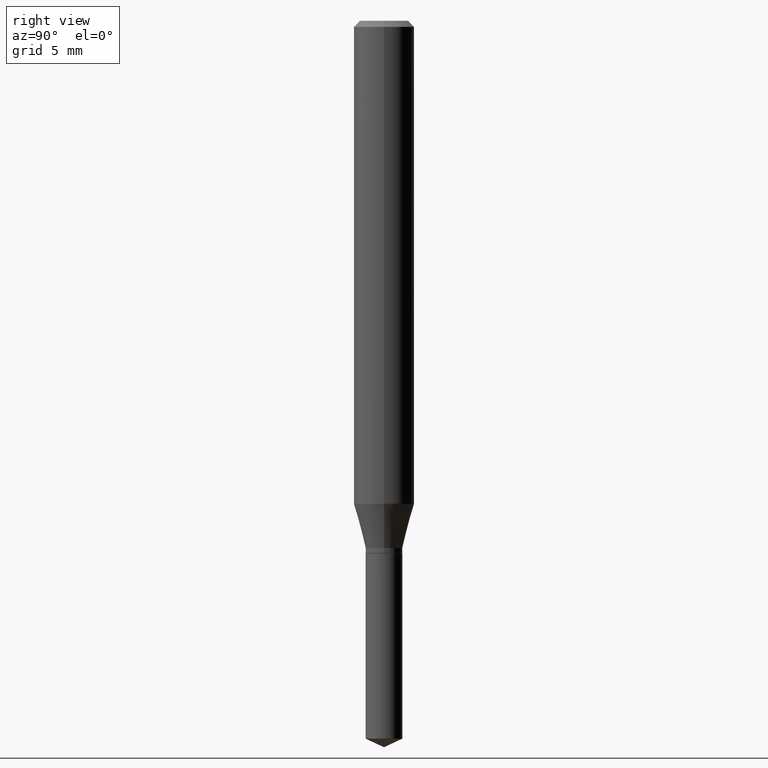
[diagram: clean part render]
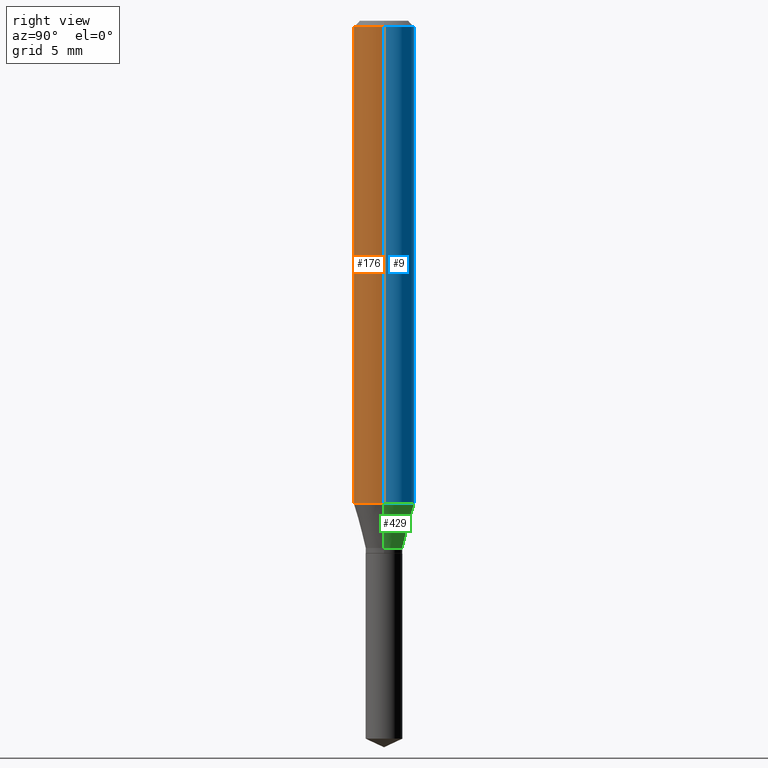
[diagram: same view with three faces highlighted in distinct colors, each labeled with its STEP entity id]
A machine part, right view with three faces highlighted in distinct colors.
Their STEP definitions:

[orange] entity #176 — the highlighted cylindrical surface (edge-blend (fillet) strip) has radius 1.5875 mm, axis along (-0, 0, 1).
#21 = LINE ( 'NONE', #331, #336 ) ;
#34 = CARTESIAN_POINT ( 'NONE',  ( -0.06250000000000012490, -3.037492924733674885E-15, -0.9971647552145623816 ) ) ;
#57 = DIRECTION ( 'NONE',  ( -2.445468806185136877E-29, 3.491481338843145188E-15, 1.000000000000000000 ) ) ;
#75 = CARTESIAN_POINT ( 'NONE',  ( 2.438535303504449813E-29, -3.481582134583737895E-15, -0.9971647552145623816 ) ) ;
#81 = DIRECTION ( 'NONE',  ( -2.445468806185136877E-29, 3.491481338843145188E-15, 1.000000000000000000 ) ) ;
#93 = CARTESIAN_POINT ( 'NONE',  ( 0.000000000000000000, 0.000000000000000000, 0.000000000000000000 ) ) ;
#105 = CIRCLE ( 'NONE', #446, 0.06250000000000012490 ) ;
#111 = VERTEX_POINT ( 'NONE', #34 ) ;
#119 = DIRECTION ( 'NONE',  ( 1.000000000000000000, -6.982962677686266711E-15, 0.000000000000000000 ) ) ;
#130 = FACE_OUTER_BOUND ( 'NONE', #318, .T. ) ;
#142 = CARTESIAN_POINT ( 'NONE',  ( 0.06250000000000012490, -3.918017301939130748E-15, -0.9971647552145623816 ) ) ;
#167 = ORIENTED_EDGE ( 'NONE', *, *, #355, .F. ) ;
#176 = ADVANCED_FACE ( 'NONE', ( #130 ), #287, .T. ) ;
#177 = ORIENTED_EDGE ( 'NONE', *, *, #342, .T. ) ;
#180 = CIRCLE ( 'NONE', #396, 0.06250000000000000000 ) ;
#198 = ORIENTED_EDGE ( 'NONE', *, *, #390, .T. ) ;
#199 = VERTEX_POINT ( 'NONE', #265 ) ;
#238 = CARTESIAN_POINT ( 'NONE',  ( 3.056836007731440539E-31, -4.364351673553960451E-17, -0.01250000000000008049 ) ) ;
#244 = LINE ( 'NONE', #398, #482 ) ;
#245 = DIRECTION ( 'NONE',  ( 1.000000000000000000, -6.982962677686267499E-15, 4.876176775795936353E-29 ) ) ;
#265 = CARTESIAN_POINT ( 'NONE',  ( 0.06250000000000000000, -4.800786840909312308E-16, -0.01250000000000008049 ) ) ;
#282 = ORIENTED_EDGE ( 'NONE', *, *, #327, .F. ) ;
#287 = CYLINDRICAL_SURFACE ( 'NONE', #385, 0.06250000000000005551 ) ;
#291 = CARTESIAN_POINT ( 'NONE',  ( -0.06250000000000000000, -1.318523615809574929E-15, -0.01250000000000008049 ) ) ;
#318 = EDGE_LOOP ( 'NONE', ( #167, #177, #198, #282 ) ) ;
#327 = EDGE_CURVE ( 'NONE', #391, #199, #180, .T. ) ;
#331 = CARTESIAN_POINT ( 'NONE',  ( -0.06250000000000005551, 4.440892098500630106E-16, -3.074334431409318916E-30 ) ) ;
#336 = VECTOR ( 'NONE', #81, 39.37007874015748143 ) ;
#342 = EDGE_CURVE ( 'NONE', #111, #360, #105, .T. ) ;
#346 = DIRECTION ( 'NONE',  ( -2.445468806185136597E-29, 3.491481338843145583E-15, 1.000000000000000000 ) ) ;
#355 = EDGE_CURVE ( 'NONE', #111, #391, #21, .T. ) ;
#360 = VERTEX_POINT ( 'NONE', #142 ) ;
#385 = AXIS2_PLACEMENT_3D ( 'NONE', #93, #468, #245 ) ;
#390 = EDGE_CURVE ( 'NONE', #360, #199, #244, .T. ) ;
#391 = VERTEX_POINT ( 'NONE', #291 ) ;
#396 = AXIS2_PLACEMENT_3D ( 'NONE', #238, #346, #119 ) ;
#398 = CARTESIAN_POINT ( 'NONE',  ( 0.06250000000000005551, -4.364351673553921131E-16, 3.047610484872463023E-30 ) ) ;
#433 = DIRECTION ( 'NONE',  ( -2.445468806185136597E-29, 3.491481338843145583E-15, 1.000000000000000000 ) ) ;
#446 = AXIS2_PLACEMENT_3D ( 'NONE', #75, #433, #460 ) ;
#460 = DIRECTION ( 'NONE',  ( 1.000000000000000000, -6.982962677686264344E-15, 0.000000000000000000 ) ) ;
#468 = DIRECTION ( 'NONE',  ( -2.445468806185136597E-29, 3.491481338843145583E-15, 1.000000000000000000 ) ) ;
#482 = VECTOR ( 'NONE', #57, 39.37007874015748143 ) ;

[blue] entity #9 — the highlighted cylindrical surface (edge-blend (fillet) strip) has radius 1.5875 mm, axis along (-0, 0, 1).
#5 = AXIS2_PLACEMENT_3D ( 'NONE', #296, #102, #24 ) ;
#9 = ADVANCED_FACE ( 'NONE', ( #107 ), #328, .T. ) ;
#21 = LINE ( 'NONE', #331, #336 ) ;
#22 = ORIENTED_EDGE ( 'NONE', *, *, #390, .F. ) ;
#24 = DIRECTION ( 'NONE',  ( 1.000000000000000000, -6.982962677686267499E-15, 4.876176775795936353E-29 ) ) ;
#34 = CARTESIAN_POINT ( 'NONE',  ( -0.06250000000000012490, -3.037492924733674885E-15, -0.9971647552145623816 ) ) ;
#39 = DIRECTION ( 'NONE',  ( 1.000000000000000000, -6.982962677686264344E-15, 0.000000000000000000 ) ) ;
#57 = DIRECTION ( 'NONE',  ( -2.445468806185136877E-29, 3.491481338843145188E-15, 1.000000000000000000 ) ) ;
#61 = EDGE_CURVE ( 'NONE', #199, #391, #415, .T. ) ;
#69 = EDGE_LOOP ( 'NONE', ( #140, #470, #207, #22 ) ) ;
#81 = DIRECTION ( 'NONE',  ( -2.445468806185136877E-29, 3.491481338843145188E-15, 1.000000000000000000 ) ) ;
#102 = DIRECTION ( 'NONE',  ( -2.445468806185136597E-29, 3.491481338843145583E-15, 1.000000000000000000 ) ) ;
#107 = FACE_OUTER_BOUND ( 'NONE', #69, .T. ) ;
#111 = VERTEX_POINT ( 'NONE', #34 ) ;
#127 = CIRCLE ( 'NONE', #206, 0.06250000000000012490 ) ;
#140 = ORIENTED_EDGE ( 'NONE', *, *, #334, .T. ) ;
#142 = CARTESIAN_POINT ( 'NONE',  ( 0.06250000000000012490, -3.918017301939130748E-15, -0.9971647552145623816 ) ) ;
#199 = VERTEX_POINT ( 'NONE', #265 ) ;
#206 = AXIS2_PLACEMENT_3D ( 'NONE', #387, #381, #39 ) ;
#207 = ORIENTED_EDGE ( 'NONE', *, *, #61, .F. ) ;
#244 = LINE ( 'NONE', #398, #482 ) ;
#254 = AXIS2_PLACEMENT_3D ( 'NONE', #340, #305, #270 ) ;
#265 = CARTESIAN_POINT ( 'NONE',  ( 0.06250000000000000000, -4.800786840909312308E-16, -0.01250000000000008049 ) ) ;
#270 = DIRECTION ( 'NONE',  ( 1.000000000000000000, -6.982962677686266711E-15, 0.000000000000000000 ) ) ;
#291 = CARTESIAN_POINT ( 'NONE',  ( -0.06250000000000000000, -1.318523615809574929E-15, -0.01250000000000008049 ) ) ;
#296 = CARTESIAN_POINT ( 'NONE',  ( 0.000000000000000000, 0.000000000000000000, 0.000000000000000000 ) ) ;
#305 = DIRECTION ( 'NONE',  ( -2.445468806185136597E-29, 3.491481338843145583E-15, 1.000000000000000000 ) ) ;
#328 = CYLINDRICAL_SURFACE ( 'NONE', #5, 0.06250000000000005551 ) ;
#331 = CARTESIAN_POINT ( 'NONE',  ( -0.06250000000000005551, 4.440892098500630106E-16, -3.074334431409318916E-30 ) ) ;
#334 = EDGE_CURVE ( 'NONE', #360, #111, #127, .T. ) ;
#336 = VECTOR ( 'NONE', #81, 39.37007874015748143 ) ;
#340 = CARTESIAN_POINT ( 'NONE',  ( 3.056836007731440539E-31, -4.364351673553960451E-17, -0.01250000000000008049 ) ) ;
#355 = EDGE_CURVE ( 'NONE', #111, #391, #21, .T. ) ;
#360 = VERTEX_POINT ( 'NONE', #142 ) ;
#381 = DIRECTION ( 'NONE',  ( -2.445468806185136597E-29, 3.491481338843145583E-15, 1.000000000000000000 ) ) ;
#387 = CARTESIAN_POINT ( 'NONE',  ( 2.438535303504449813E-29, -3.481582134583737895E-15, -0.9971647552145623816 ) ) ;
#390 = EDGE_CURVE ( 'NONE', #360, #199, #244, .T. ) ;
#391 = VERTEX_POINT ( 'NONE', #291 ) ;
#398 = CARTESIAN_POINT ( 'NONE',  ( 0.06250000000000005551, -4.364351673553921131E-16, 3.047610484872463023E-30 ) ) ;
#415 = CIRCLE ( 'NONE', #254, 0.06250000000000000000 ) ;
#470 = ORIENTED_EDGE ( 'NONE', *, *, #355, .T. ) ;
#482 = VECTOR ( 'NONE', #57, 39.37007874015748143 ) ;

[green] entity #429 — the highlighted conical surface has half-angle 15 deg.
#3 = ORIENTED_EDGE ( 'NONE', *, *, #122, .F. ) ;
#4 = LINE ( 'NONE', #395, #373 ) ;
#8 = CONICAL_SURFACE ( 'NONE', #259, 0.03800000000000000600, 0.2617993877991500740 ) ;
#15 = DIRECTION ( 'NONE',  ( 1.000000000000000000, -6.982962677686267499E-15, 0.000000000000000000 ) ) ;
#34 = CARTESIAN_POINT ( 'NONE',  ( -0.06250000000000012490, -3.037492924733674885E-15, -0.9971647552145623816 ) ) ;
#38 = DIRECTION ( 'NONE',  ( 0.2588190451025213501, 1.565188264969621968E-15, 0.9659258262890682012 ) ) ;
#39 = DIRECTION ( 'NONE',  ( 1.000000000000000000, -6.982962677686264344E-15, 0.000000000000000000 ) ) ;
#54 = DIRECTION ( 'NONE',  ( 1.000000000000000000, -6.982962677686267499E-15, 0.000000000000000000 ) ) ;
#56 = EDGE_CURVE ( 'NONE', #463, #352, #462, .T. ) ;
#92 = CARTESIAN_POINT ( 'NONE',  ( 0.03800000000000000600, -4.066179167216727040E-15, -1.088600000000000012 ) ) ;
#111 = VERTEX_POINT ( 'NONE', #34 ) ;
#122 = EDGE_CURVE ( 'NONE', #463, #360, #489, .T. ) ;
#127 = CIRCLE ( 'NONE', #206, 0.06250000000000012490 ) ;
#142 = CARTESIAN_POINT ( 'NONE',  ( 0.06250000000000012490, -3.918017301939130748E-15, -0.9971647552145623816 ) ) ;
#168 = DIRECTION ( 'NONE',  ( -2.445468806185136597E-29, 3.491481338843145583E-15, 1.000000000000000000 ) ) ;
#187 = DIRECTION ( 'NONE',  ( -2.445468806185136597E-29, 3.491481338843145583E-15, 1.000000000000000000 ) ) ;
#206 = AXIS2_PLACEMENT_3D ( 'NONE', #387, #381, #39 ) ;
#210 = CARTESIAN_POINT ( 'NONE',  ( 2.662137342413139764E-29, -3.800826585464649031E-15, -1.088600000000000012 ) ) ;
#259 = AXIS2_PLACEMENT_3D ( 'NONE', #210, #168, #54 ) ;
#264 = ORIENTED_EDGE ( 'NONE', *, *, #422, .T. ) ;
#299 = CARTESIAN_POINT ( 'NONE',  ( 2.662137342413139764E-29, -3.800826585464649031E-15, -1.088600000000000012 ) ) ;
#334 = EDGE_CURVE ( 'NONE', #360, #111, #127, .T. ) ;
#349 = ORIENTED_EDGE ( 'NONE', *, *, #334, .F. ) ;
#352 = VERTEX_POINT ( 'NONE', #441 ) ;
#354 = VECTOR ( 'NONE', #38, 39.37007874015747433 ) ;
#360 = VERTEX_POINT ( 'NONE', #142 ) ;
#373 = VECTOR ( 'NONE', #464, 39.37007874015747433 ) ;
#380 = CARTESIAN_POINT ( 'NONE',  ( 0.03800000000000000600, -4.066179167216727040E-15, -1.088600000000000012 ) ) ;
#381 = DIRECTION ( 'NONE',  ( -2.445468806185136597E-29, 3.491481338843145583E-15, 1.000000000000000000 ) ) ;
#387 = CARTESIAN_POINT ( 'NONE',  ( 2.438535303504449813E-29, -3.481582134583737895E-15, -0.9971647552145623816 ) ) ;
#395 = CARTESIAN_POINT ( 'NONE',  ( -0.03800000000000000600, -3.530820345875810721E-15, -1.088600000000000012 ) ) ;
#422 = EDGE_CURVE ( 'NONE', #352, #111, #4, .T. ) ;
#429 = ADVANCED_FACE ( 'NONE', ( #438 ), #8, .T. ) ;
#438 = FACE_OUTER_BOUND ( 'NONE', #442, .T. ) ;
#441 = CARTESIAN_POINT ( 'NONE',  ( -0.03800000000000000600, -3.549848919172505504E-15, -1.088600000000000012 ) ) ;
#442 = EDGE_LOOP ( 'NONE', ( #477, #264, #349, #3 ) ) ;
#445 = AXIS2_PLACEMENT_3D ( 'NONE', #299, #187, #15 ) ;
#462 = CIRCLE ( 'NONE', #445, 0.03800000000000000600 ) ;
#463 = VERTEX_POINT ( 'NONE', #92 ) ;
#464 = DIRECTION ( 'NONE',  ( -0.2588190451025213501, 5.211531920934551042E-15, 0.9659258262890682012 ) ) ;
#477 = ORIENTED_EDGE ( 'NONE', *, *, #56, .T. ) ;
#489 = LINE ( 'NONE', #380, #354 ) ;